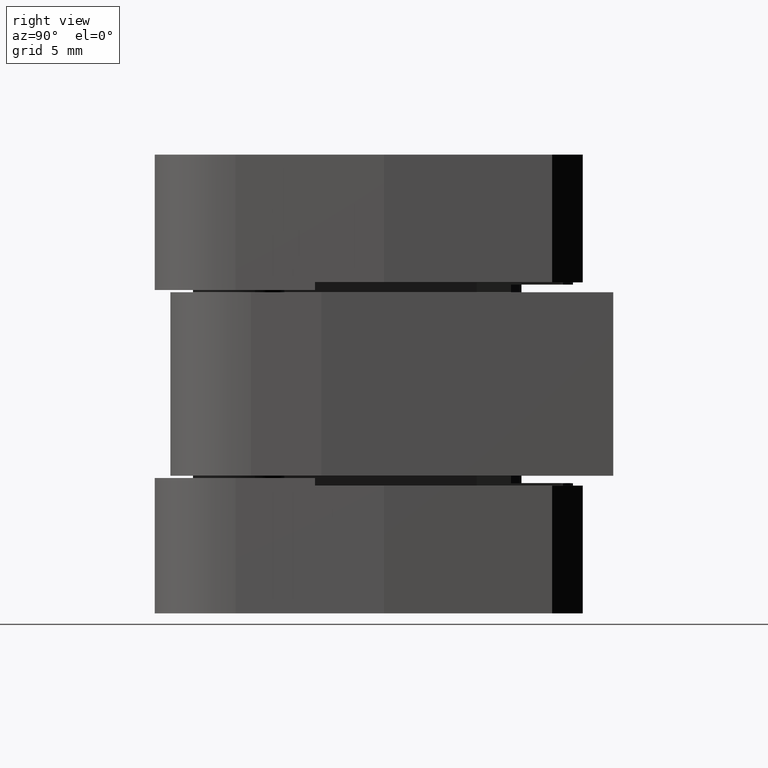
[diagram: clean part render]
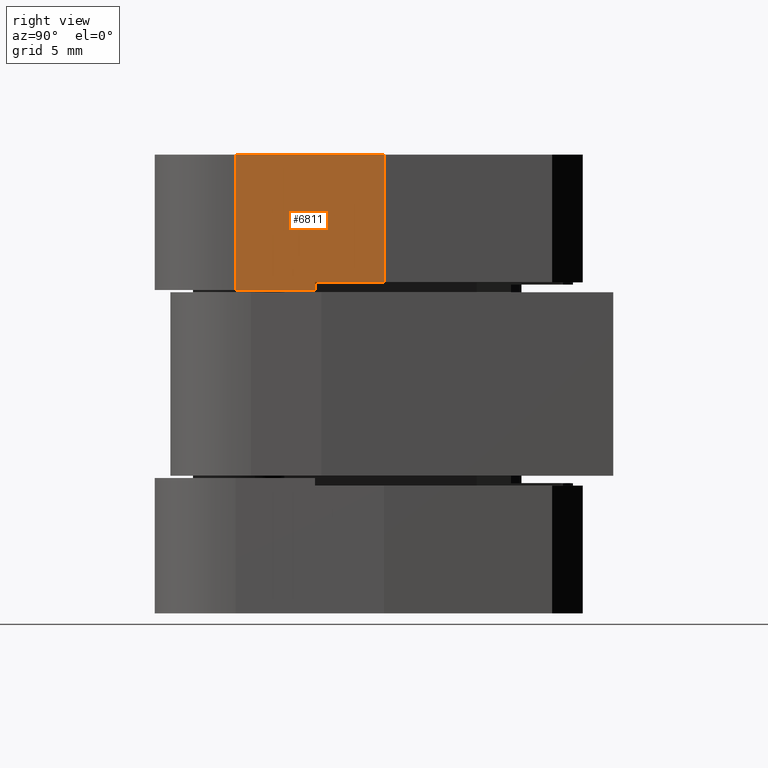
[diagram: same view with one face highlighted and labeled with its STEP entity id]
A machine part, right view. The second image highlights one B-rep face of the part: STEP entity #6811.
In plain terms, the highlighted face is a freeform B-spline surface patch.
Its self-contained STEP definition (entity closure, byte-faithful):
#5693=CARTESIAN_POINT('',(6.570682768035730,5.000000213738500,21.150001004573451));
#5694=VERTEX_POINT('',#5693);
#5700=CARTESIAN_POINT('',(5.958918305537690,-0.200924302531376,21.150001004573451));
#5701=VERTEX_POINT('',#5700);
#5702=CARTESIAN_POINT('',(5.958918305537690,-0.200924302531376,21.150001004573451));
#5703=CARTESIAN_POINT('',(6.570682768035730,5.000000213738500,21.150001004573451));
#5704=QUASI_UNIFORM_CURVE('',1,(#5702,#5703),.UNSPECIFIED.,.F.,.U.);
#5705=EDGE_CURVE('',#5701,#5694,#5704,.T.);
#5836=CARTESIAN_POINT('',(7.100000241864491,9.500000451225761,21.650001028321501));
#5837=VERTEX_POINT('',#5836);
#5845=CARTESIAN_POINT('',(6.570682768035730,5.000000213738500,21.650001028321501));
#5846=VERTEX_POINT('',#5845);
#5847=CARTESIAN_POINT('',(6.570682768035730,5.000000213738500,21.650001028321501));
#5848=CARTESIAN_POINT('',(7.100000241864491,9.500000451225761,21.650001028321501));
#5849=QUASI_UNIFORM_CURVE('',1,(#5847,#5848),.UNSPECIFIED.,.F.,.U.);
#5850=EDGE_CURVE('',#5846,#5837,#5849,.T.);
#6360=CARTESIAN_POINT('',(5.958918305537990,-0.200924302531412,30.000001424925198));
#6361=VERTEX_POINT('',#6360);
#6379=CARTESIAN_POINT('',(7.100000241864491,9.500000451225770,30.000001424925198));
#6380=VERTEX_POINT('',#6379);
#6381=CARTESIAN_POINT('',(7.100000241864491,9.500000451225770,30.000001424925198));
#6382=CARTESIAN_POINT('',(5.958918305537990,-0.200924302531412,30.000001424925198));
#6383=QUASI_UNIFORM_CURVE('',1,(#6381,#6382),.UNSPECIFIED.,.F.,.U.);
#6384=EDGE_CURVE('',#6380,#6361,#6383,.T.);
#6705=CARTESIAN_POINT('',(7.100000241864491,9.500000451225770,30.000001424925198));
#6706=CARTESIAN_POINT('',(7.100000241864491,9.500000451225761,21.650001028321501));
#6707=QUASI_UNIFORM_CURVE('',1,(#6705,#6706),.UNSPECIFIED.,.F.,.U.);
#6708=EDGE_CURVE('',#6380,#5837,#6707,.T.);
#6738=CARTESIAN_POINT('',(6.570682768035730,5.000000213738500,21.650001028321501));
#6739=CARTESIAN_POINT('',(6.570682768035730,5.000000213738500,21.150001004573451));
#6740=QUASI_UNIFORM_CURVE('',1,(#6738,#6739),.UNSPECIFIED.,.F.,.U.);
#6741=EDGE_CURVE('',#5846,#5694,#6740,.T.);
#6789=CARTESIAN_POINT('',(5.958918305537990,-0.200924302531412,30.000001424925198));
#6790=CARTESIAN_POINT('',(5.958918305537690,-0.200924302531376,21.150001004573451));
#6791=QUASI_UNIFORM_CURVE('',1,(#6789,#6790),.UNSPECIFIED.,.F.,.U.);
#6792=EDGE_CURVE('',#6361,#5701,#6791,.T.);
#6798=CARTESIAN_POINT('',(5.901921258395205,-0.685485531586133,20.707943999194729));
#6799=CARTESIAN_POINT('',(7.156997227794872,9.984561159882334,20.707943999194729));
#6800=CARTESIAN_POINT('',(5.901921258395205,-0.685485531586133,30.442059142430459));
#6801=CARTESIAN_POINT('',(7.156997227794872,9.984561159882334,30.442059142430459));
#6802=B_SPLINE_SURFACE_WITH_KNOTS('',1,1,((#6798,#6800),(#6799,#6801)),.UNSPECIFIED.,.F.,.F.,.U.,(2,2),(2,2),(0.0,10.743607964137640),(0.0,9.734115143235730),.UNSPECIFIED.);
#6803=ORIENTED_EDGE('',*,*,#6792,.T.);
#6804=ORIENTED_EDGE('',*,*,#5705,.T.);
#6805=ORIENTED_EDGE('',*,*,#6741,.F.);
#6806=ORIENTED_EDGE('',*,*,#5850,.T.);
#6807=ORIENTED_EDGE('',*,*,#6708,.F.);
#6808=ORIENTED_EDGE('',*,*,#6384,.T.);
#6809=EDGE_LOOP('',(#6803,#6804,#6805,#6806,#6807,#6808));
#6810=FACE_OUTER_BOUND('',#6809,.T.);
#6811=ADVANCED_FACE('',(#6810),#6802,.T.);